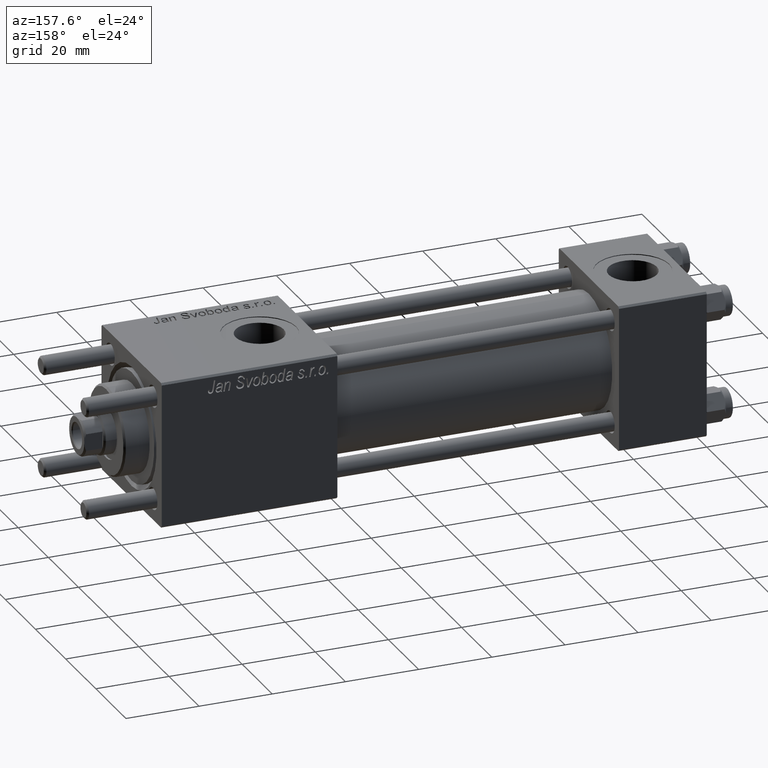
[diagram: clean part render]
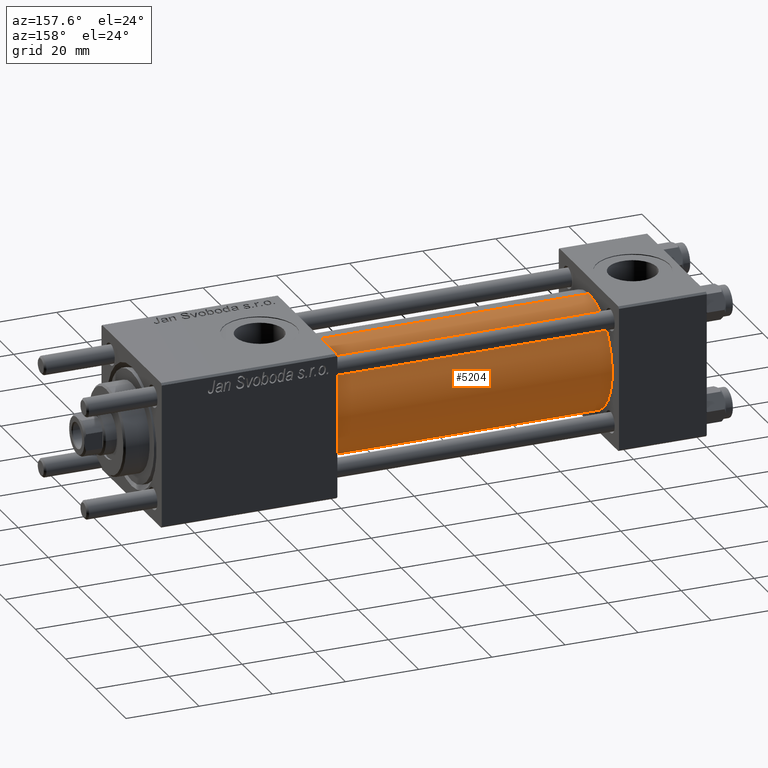
[diagram: same view with one face highlighted and labeled with its STEP entity id]
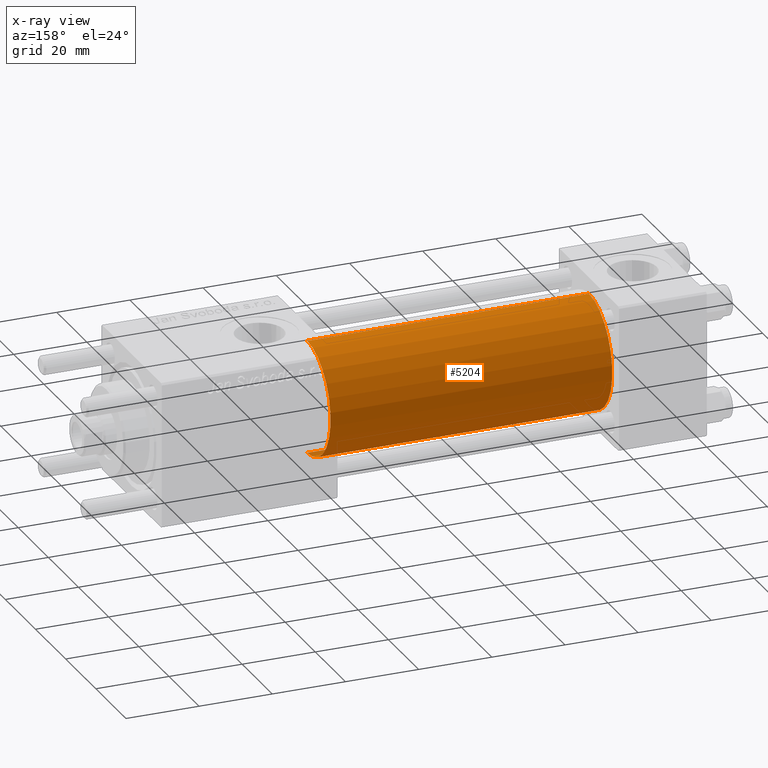
[diagram: x-ray of the same camera — body ghosted, the highlighted face saturated]
A machine part, auxiliary view. The second image highlights one B-rep face of the part: STEP entity #5204.
The next image is the same camera in x-ray: the body ghosted, the highlighted face saturated — about 0% of this face is hidden behind the body in this view.
In plain terms, the highlighted cylindrical surface (partial cylindrical patch) has radius 15.5 mm, axis along (-1, -0, -0).
Its self-contained STEP definition (entity closure, byte-faithful):
#4080 = VERTEX_POINT ( 'NONE', #18952 ) ;
#5204 = ADVANCED_FACE ( 'NONE', ( #22570 ), #9659, .T. ) ;
#5721 = CARTESIAN_POINT ( 'NONE',  ( 101.0000000000000000, -7.038826752868131828E-16, -15.50000000000000000 ) ) ;
#8753 = VECTOR ( 'NONE', #46890, 1000.000000000000000 ) ;
#9117 = VERTEX_POINT ( 'NONE', #40178 ) ;
#9659 = CYLINDRICAL_SURFACE ( 'NONE', #35041, 15.50000000000000000 ) ;
#10224 = DIRECTION ( 'NONE',  ( -1.000000000000000000, -0.000000000000000000, -0.000000000000000000 ) ) ;
#10735 = AXIS2_PLACEMENT_3D ( 'NONE', #31409, #30847, #17649 ) ;
#14228 = CARTESIAN_POINT ( 'NONE',  ( 101.0000000000000000, -2.602085213965210642E-15, 15.50000000000000000 ) ) ;
#14601 = ORIENTED_EDGE ( 'NONE', *, *, #18456, .T. ) ;
#17611 = EDGE_CURVE ( 'NONE', #23156, #4080, #23128, .T. ) ;
#17649 = DIRECTION ( 'NONE',  ( 0.000000000000000000, 0.000000000000000000, -1.000000000000000000 ) ) ;
#18456 = EDGE_CURVE ( 'NONE', #38901, #9117, #23484, .T. ) ;
#18952 = CARTESIAN_POINT ( 'NONE',  ( 23.99999999999999289, -2.602085213965210642E-15, 15.50000000000000000 ) ) ;
#22520 = CARTESIAN_POINT ( 'NONE',  ( 101.0000000000000000, -2.602085213965210642E-15, 15.50000000000000000 ) ) ;
#22570 = FACE_OUTER_BOUND ( 'NONE', #27410, .T. ) ;
#22581 = CIRCLE ( 'NONE', #46348, 15.50000000000000000 ) ;
#23128 = LINE ( 'NONE', #14228, #27074 ) ;
#23156 = VERTEX_POINT ( 'NONE', #22520 ) ;
#23484 = LINE ( 'NONE', #5721, #8753 ) ;
#25367 = EDGE_CURVE ( 'NONE', #9117, #4080, #22581, .T. ) ;
#26150 = CARTESIAN_POINT ( 'NONE',  ( 23.99999999999999289, -2.602085213965210642E-15, 0.000000000000000000 ) ) ;
#27074 = VECTOR ( 'NONE', #40618, 1000.000000000000000 ) ;
#27145 = CARTESIAN_POINT ( 'NONE',  ( 101.0000000000000000, -2.602085213965210642E-15, 0.000000000000000000 ) ) ;
#27410 = EDGE_LOOP ( 'NONE', ( #55865, #14601, #50686, #30331 ) ) ;
#28292 = EDGE_CURVE ( 'NONE', #38901, #23156, #53784, .T. ) ;
#30331 = ORIENTED_EDGE ( 'NONE', *, *, #17611, .F. ) ;
#30847 = DIRECTION ( 'NONE',  ( 1.000000000000000000, 0.000000000000000000, 0.000000000000000000 ) ) ;
#31409 = CARTESIAN_POINT ( 'NONE',  ( 101.0000000000000000, -2.602085213965210642E-15, 0.000000000000000000 ) ) ;
#32298 = CARTESIAN_POINT ( 'NONE',  ( 101.0000000000000000, -7.038826752868131828E-16, -15.50000000000000000 ) ) ;
#35041 = AXIS2_PLACEMENT_3D ( 'NONE', #27145, #10224, #44641 ) ;
#38490 = DIRECTION ( 'NONE',  ( 0.000000000000000000, 0.000000000000000000, 1.000000000000000000 ) ) ;
#38901 = VERTEX_POINT ( 'NONE', #32298 ) ;
#40178 = CARTESIAN_POINT ( 'NONE',  ( 23.99999999999999289, -7.038826752868131828E-16, -15.50000000000000000 ) ) ;
#40618 = DIRECTION ( 'NONE',  ( -1.000000000000000000, -0.000000000000000000, -0.000000000000000000 ) ) ;
#44641 = DIRECTION ( 'NONE',  ( 0.000000000000000000, 0.000000000000000000, 1.000000000000000000 ) ) ;
#46348 = AXIS2_PLACEMENT_3D ( 'NONE', #26150, #55701, #38490 ) ;
#46890 = DIRECTION ( 'NONE',  ( -1.000000000000000000, -0.000000000000000000, -0.000000000000000000 ) ) ;
#50686 = ORIENTED_EDGE ( 'NONE', *, *, #25367, .T. ) ;
#53784 = CIRCLE ( 'NONE', #10735, 15.50000000000000000 ) ;
#55701 = DIRECTION ( 'NONE',  ( 1.000000000000000000, 0.000000000000000000, 0.000000000000000000 ) ) ;
#55865 = ORIENTED_EDGE ( 'NONE', *, *, #28292, .F. ) ;